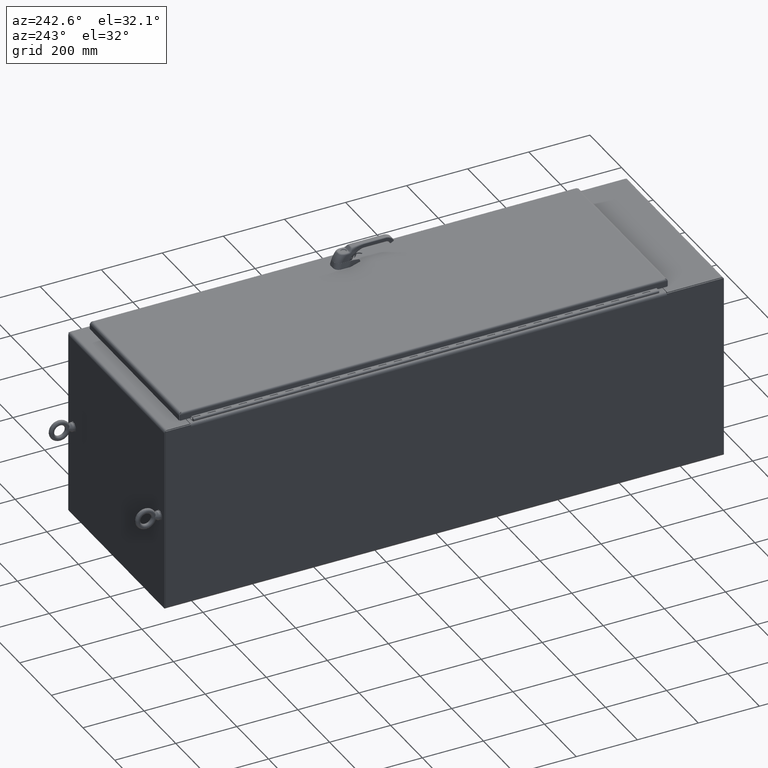
[diagram: clean part render]
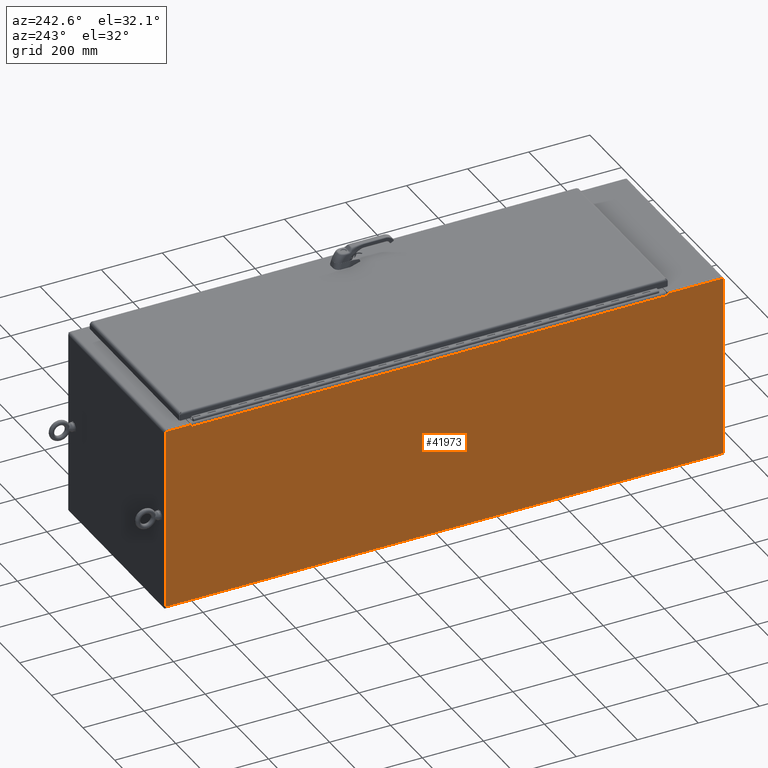
[diagram: same view with one face highlighted and labeled with its STEP entity id]
A machine part, auxiliary view. The second image highlights one B-rep face of the part: STEP entity #41973.
In plain terms, the highlighted planar face has unit normal (1, 0, 0).
Its self-contained STEP definition (entity closure, byte-faithful):
#2178=PLANE('',#45529);
#3287=FACE_OUTER_BOUND('',#5932,.T.);
#5932=EDGE_LOOP('',(#27956,#27957,#27958,#27959,#27960,#27961,#27962,#27963,
#27964,#27965,#27966,#27967));
#11229=LINE('',#63472,#14521);
#11235=LINE('',#63490,#14527);
#11238=LINE('',#63497,#14530);
#11242=LINE('',#63504,#14534);
#11244=LINE('',#63508,#14536);
#11245=LINE('',#63510,#14537);
#11246=LINE('',#63512,#14538);
#11247=LINE('',#63514,#14539);
#11248=LINE('',#63516,#14540);
#11249=LINE('',#63518,#14541);
#11250=LINE('',#63520,#14542);
#11251=LINE('',#63521,#14543);
#14521=VECTOR('',#50457,0.393700787401575);
#14527=VECTOR('',#50481,0.393700787401575);
#14530=VECTOR('',#50486,0.393700787401575);
#14534=VECTOR('',#50492,0.393700787401575);
#14536=VECTOR('',#50496,0.393700787401575);
#14537=VECTOR('',#50497,0.393700787401575);
#14538=VECTOR('',#50498,0.393700787401575);
#14539=VECTOR('',#50499,0.393700787401575);
#14540=VECTOR('',#50500,0.393700787401575);
#14541=VECTOR('',#50501,0.393700787401575);
#14542=VECTOR('',#50502,0.29108);
#14543=VECTOR('',#50503,0.393700787401575);
#17801=VERTEX_POINT('',#63469);
#17802=VERTEX_POINT('',#63471);
#17805=VERTEX_POINT('',#63489);
#17807=VERTEX_POINT('',#63495);
#17808=VERTEX_POINT('',#63496);
#17811=VERTEX_POINT('',#63507);
#17812=VERTEX_POINT('',#63509);
#17813=VERTEX_POINT('',#63511);
#17814=VERTEX_POINT('',#63513);
#17815=VERTEX_POINT('',#63515);
#17816=VERTEX_POINT('',#63517);
#17817=VERTEX_POINT('',#63519);
#21712=EDGE_CURVE('',#17802,#17801,#11229,.T.);
#21721=EDGE_CURVE('',#17805,#17802,#11235,.T.);
#21724=EDGE_CURVE('',#17807,#17808,#11238,.T.);
#21728=EDGE_CURVE('',#17808,#17805,#11242,.T.);
#21730=EDGE_CURVE('',#17801,#17811,#11244,.T.);
#21731=EDGE_CURVE('',#17811,#17812,#11245,.T.);
#21732=EDGE_CURVE('',#17812,#17813,#11246,.T.);
#21733=EDGE_CURVE('',#17814,#17813,#11247,.T.);
#21734=EDGE_CURVE('',#17815,#17814,#11248,.T.);
#21735=EDGE_CURVE('',#17815,#17816,#11249,.T.);
#21736=EDGE_CURVE('',#17817,#17816,#11250,.T.);
#21737=EDGE_CURVE('',#17807,#17817,#11251,.T.);
#27956=ORIENTED_EDGE('',*,*,#21724,.T.);
#27957=ORIENTED_EDGE('',*,*,#21728,.T.);
#27958=ORIENTED_EDGE('',*,*,#21721,.T.);
#27959=ORIENTED_EDGE('',*,*,#21712,.T.);
#27960=ORIENTED_EDGE('',*,*,#21730,.T.);
#27961=ORIENTED_EDGE('',*,*,#21731,.T.);
#27962=ORIENTED_EDGE('',*,*,#21732,.T.);
#27963=ORIENTED_EDGE('',*,*,#21733,.F.);
#27964=ORIENTED_EDGE('',*,*,#21734,.F.);
#27965=ORIENTED_EDGE('',*,*,#21735,.T.);
#27966=ORIENTED_EDGE('',*,*,#21736,.F.);
#27967=ORIENTED_EDGE('',*,*,#21737,.F.);
#41973=ADVANCED_FACE('',(#3287),#2178,.F.);
#45529=AXIS2_PLACEMENT_3D('',#63506,#50494,#50495);
#50457=DIRECTION('',(-1.47561993668285E-16,1.,0.));
#50481=DIRECTION('',(-6.0858291410129E-17,0.,1.));
#50486=DIRECTION('',(6.0858291410129E-17,0.,-1.));
#50492=DIRECTION('',(-1.47561993668285E-16,1.,0.));
#50494=DIRECTION('center_axis',(1.,1.47561993668285E-16,6.0858291410129E-17));
#50495=DIRECTION('ref_axis',(6.0858291410129E-17,-1.48910014026238E-16,
-1.));
#50496=DIRECTION('',(6.0858291410129E-17,0.,-1.));
#50497=DIRECTION('',(-1.47561993668285E-16,1.,0.));
#50498=DIRECTION('',(-6.0858291410129E-17,0.,1.));
#50499=DIRECTION('',(1.47086680131666E-16,-1.,-6.68114497718063E-18));
#50500=DIRECTION('',(-6.12323399573677E-17,0.,1.));
#50501=DIRECTION('',(1.47561993668285E-16,-1.,-8.25424408275872E-35));
#50502=DIRECTION('',(1.50163418643082E-16,2.99142166578557E-32,-1.));
#50503=DIRECTION('',(1.47086680131666E-16,-1.,-6.68114497718063E-18));
#63469=CARTESIAN_POINT('',(-9.39755709820506E-16,-3.271,23.771));
#63471=CARTESIAN_POINT('',(8.10812484519553E-15,-64.646,23.771));
#63472=CARTESIAN_POINT('',(5.95542862618809E-15,-50.30225,23.771));
#63489=CARTESIAN_POINT('',(8.08627006124622E-15,-64.646,23.7708));
#63490=CARTESIAN_POINT('',(8.42501921246059E-15,-64.646,17.8648431512991));
#63495=CARTESIAN_POINT('',(8.04256049334759E-15,-64.6462,24.021));
#63496=CARTESIAN_POINT('',(8.08627006124622E-15,-64.6462,23.7708));
#63497=CARTESIAN_POINT('',(8.41409182048593E-15,-64.6462,17.9899431512991));
#63504=CARTESIAN_POINT('',(5.95542862618809E-15,-50.30235,23.7708));
#63506=CARTESIAN_POINT('Origin',(4.56117379736105E-15,-35.9585,11.9588863025983));
#63507=CARTESIAN_POINT('',(-9.39755709820506E-16,-3.271,23.7708));
#63508=CARTESIAN_POINT('',(-6.33788734530109E-16,-3.271,17.9899431512991));
#63509=CARTESIAN_POINT('',(-9.39755709820506E-16,-3.2708,23.7708));
#63510=CARTESIAN_POINT('',(1.42056095670542E-15,-19.61475,23.7708));
#63511=CARTESIAN_POINT('',(-9.83465277719135E-16,-3.2708,24.021));
#63512=CARTESIAN_POINT('',(-6.22861342555452E-16,-3.2708,17.8648431512991));
#63513=CARTESIAN_POINT('',(-1.48828882062651E-15,-5.28291936159412E-17,
24.021));
#63514=CARTESIAN_POINT('',(-1.44457925272788E-15,-5.28291936159412E-17,
24.021));
#63515=CARTESIAN_POINT('',(4.60653704313828E-18,-5.28291936159418E-17,0.354));
#63516=CARTESIAN_POINT('',(4.60653704313828E-18,-5.28291936159418E-17,0.354));
#63517=CARTESIAN_POINT('',(1.05887349970204E-14,-71.917,0.354));
#63518=CARTESIAN_POINT('',(5.26630444462101E-15,-35.9585,0.353999999999999));
#63519=CARTESIAN_POINT('',(9.13345352230116E-15,-71.917,24.021));
#63520=CARTESIAN_POINT('',(1.07260526544223E-14,-71.917,-0.560454789606917));
#63521=CARTESIAN_POINT('',(-1.44457925272788E-15,-5.28291936159412E-17,
24.021));